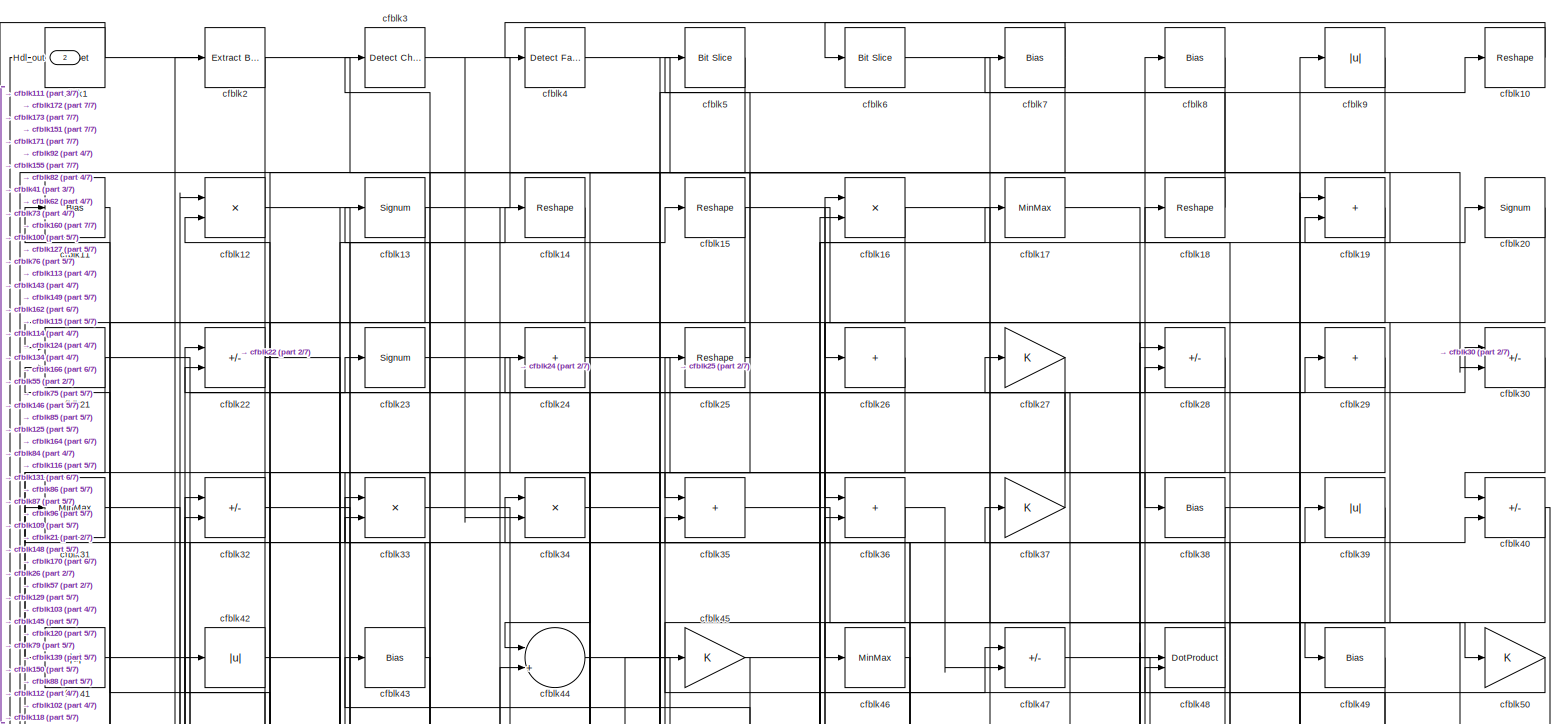
[diagram: root canvas - part 1/7, full width, top band]
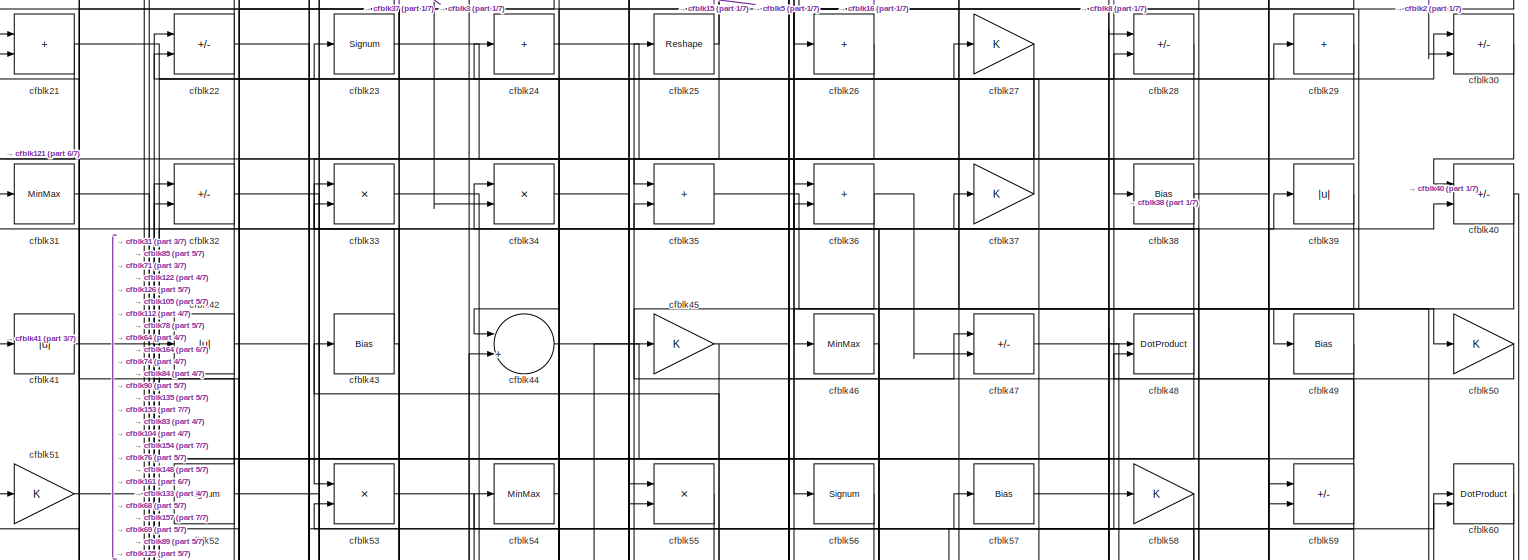
[diagram: root canvas - part 2/7, full width, top band]
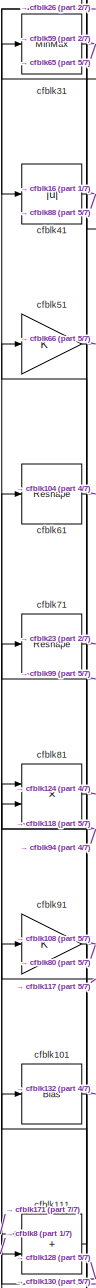
[diagram: root canvas - part 3/7, middle left region]
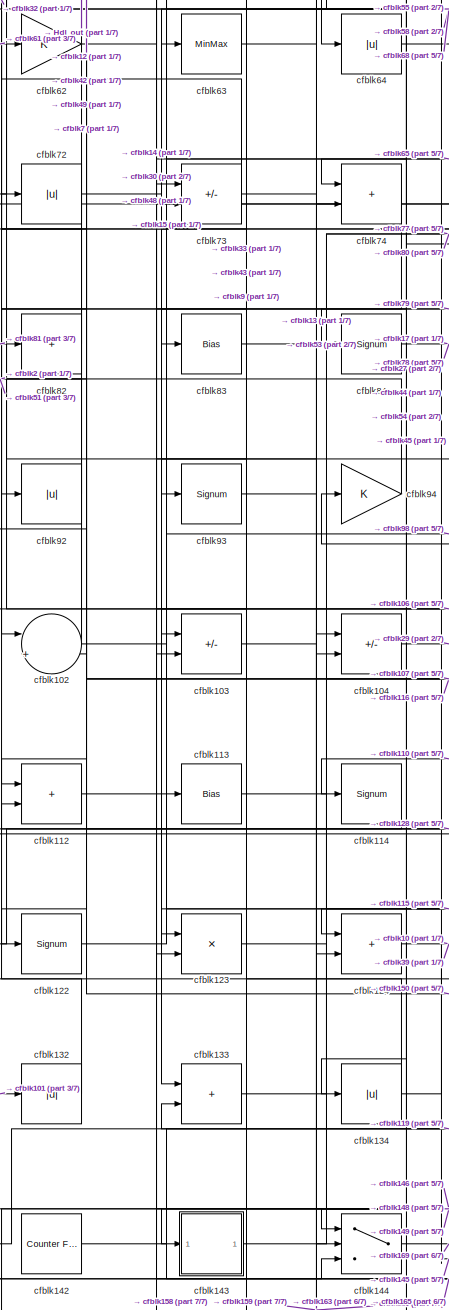
[diagram: root canvas - part 4/7, middle left region]
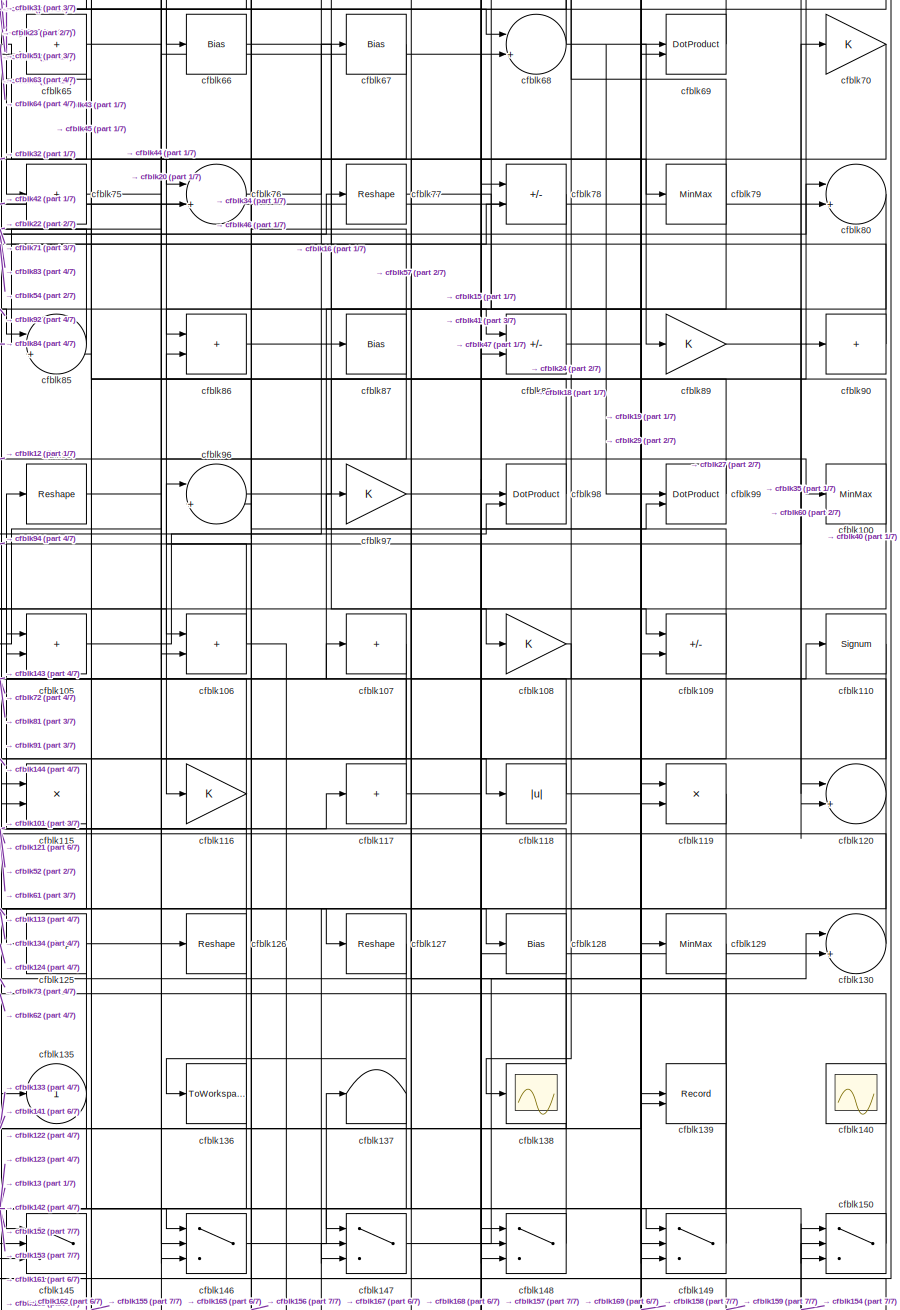
[diagram: root canvas - part 5/7, middle right region]
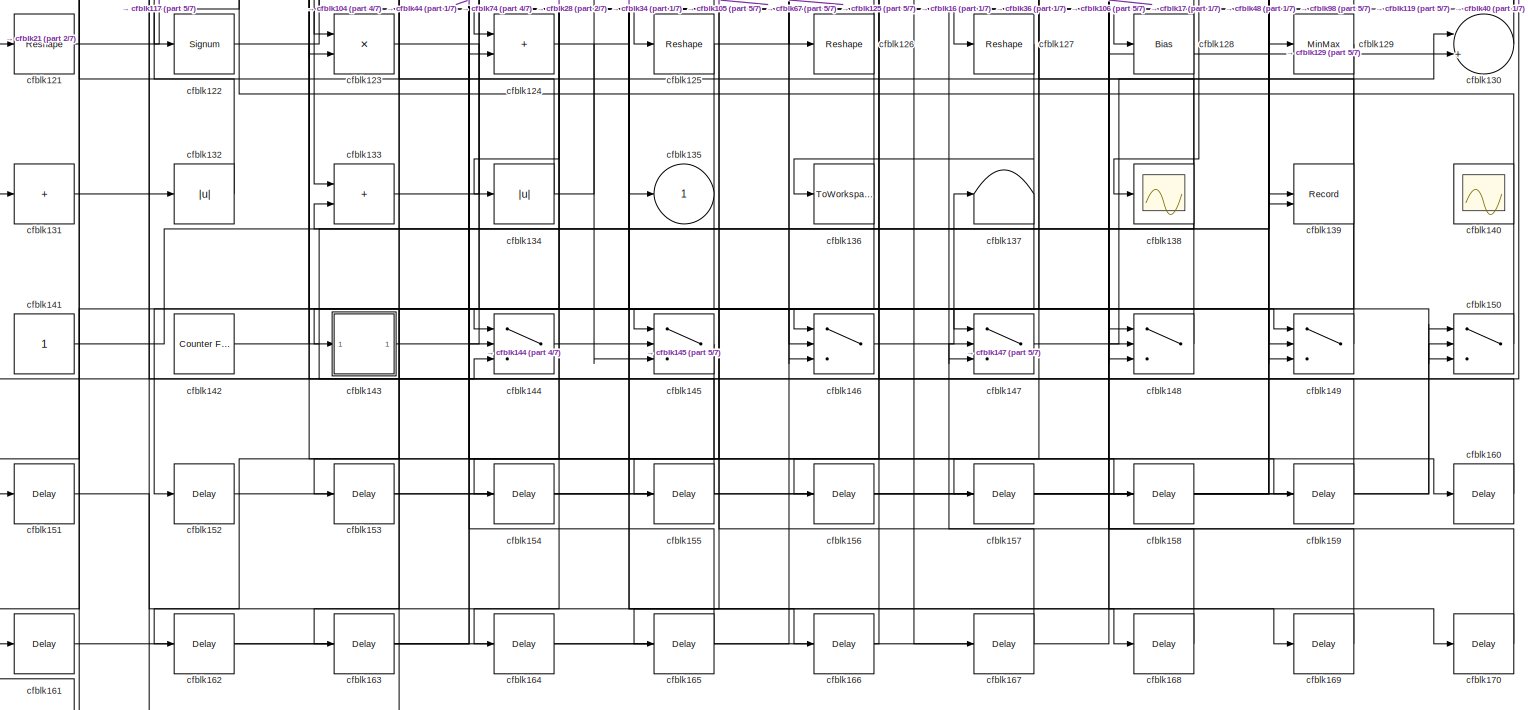
[diagram: root canvas - part 6/7, full width, bottom band]
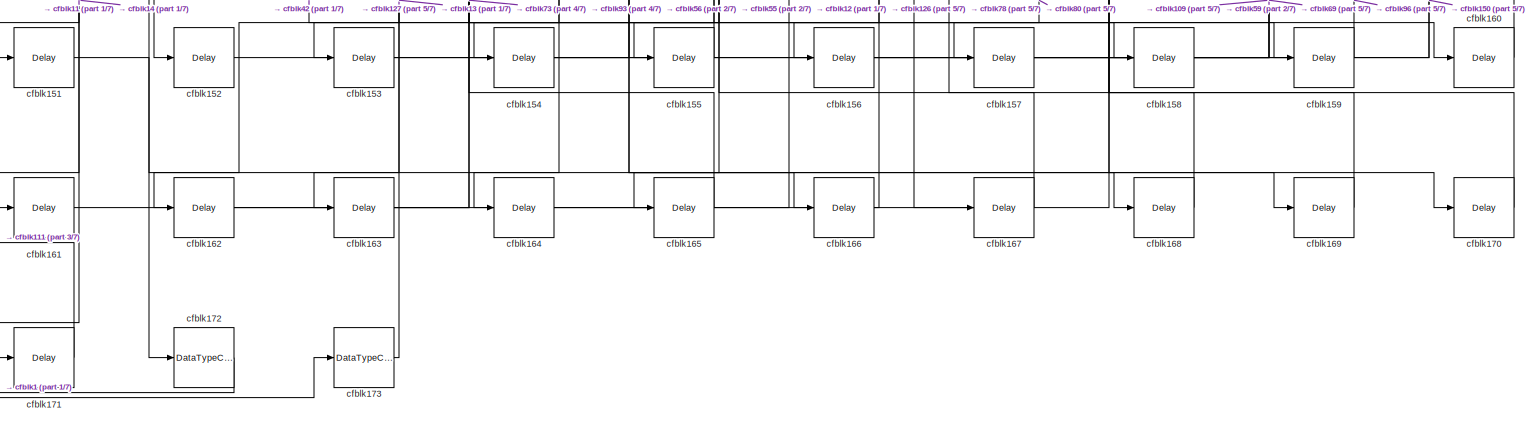
[diagram: root canvas - part 7/7, full width, bottom band]
MODEL slx_3c6c2945e381
KIND model
CONFIG AbsTol = auto
CONFIG EnableMultiTasking = off
CONFIG FixedStep = auto
CONFIG MaxStep = auto
CONFIG MinStep = auto
CONFIG RelTol = 1e-3
CONFIG SampleTimeConstraint = Unconstrained
CONFIG SolverName = VariableStepAuto
CONFIG StartTime = 0.0
CONFIG StopTime = 10.0
BLOCK [Outport] Hdl_out
  OutDataTypeStr = uint8
  Port = 2
BLOCK [Reference] cfblk1  REF=simulink/Logic and Bit
Operations/Bit Set
  LibrarySourceBlock = hdlsllib/Logic and Bit\nOperations/Bit Set
  SourceBlock = simulink/Logic and Bit\nOperations/Bit Set
  SourceType = Bit Set
BLOCK [Reshape] cfblk10
BLOCK [MinMax] cfblk100
  OutDataTypeStr = uint8
BLOCK [Bias] cfblk101
  Bias = 0.0
  SaturateOnIntegerOverflow = off
BLOCK [Sum] cfblk102
  Inputs = |++
  OutDataTypeStr = uint8
BLOCK [Sum] cfblk103
  IconShape = rectangular
  Inputs = +-
  OutDataTypeStr = uint8
BLOCK [Sum] cfblk104
  IconShape = rectangular
  Inputs = +-
  OutDataTypeStr = uint8
BLOCK [Sum] cfblk105
  IconShape = rectangular
  OutDataTypeStr = uint8
BLOCK [Sum] cfblk106
  IconShape = rectangular
  OutDataTypeStr = uint8
BLOCK [Sum] cfblk107
  IconShape = rectangular
  Inputs = +
  OutDataTypeStr = uint8
BLOCK [Gain] cfblk108
  OutDataTypeStr = uint8
BLOCK [Sum] cfblk109
  IconShape = rectangular
  Inputs = +-
  OutDataTypeStr = uint8
BLOCK [Bias] cfblk11
  Bias = 0.0
  SaturateOnIntegerOverflow = off
BLOCK [Signum] cfblk110
BLOCK [Sum] cfblk111
  IconShape = rectangular
  OutDataTypeStr = uint8
BLOCK [Sum] cfblk112
  IconShape = rectangular
  OutDataTypeStr = uint8
BLOCK [Bias] cfblk113
  Bias = 0.0
  SaturateOnIntegerOverflow = off
BLOCK [Signum] cfblk114
BLOCK [Product] cfblk115
  Inputs = */
  OutDataTypeStr = uint8
  RndMeth = Zero
  SaturateOnIntegerOverflow = on
BLOCK [Gain] cfblk116
  OutDataTypeStr = uint8
BLOCK [Sum] cfblk117
  IconShape = rectangular
  Inputs = +
  OutDataTypeStr = uint8
BLOCK [Abs] cfblk118
  OutDataTypeStr = uint8
  SaturateOnIntegerOverflow = off
BLOCK [Product] cfblk119
  Inputs = */
  OutDataTypeStr = uint8
  RndMeth = Zero
  SaturateOnIntegerOverflow = on
BLOCK [Product] cfblk12
  Inputs = */
  OutDataTypeStr = uint8
  RndMeth = Zero
  SaturateOnIntegerOverflow = on
BLOCK [Sum] cfblk120
  Inputs = |++
  OutDataTypeStr = uint8
BLOCK [Reshape] cfblk121
BLOCK [Signum] cfblk122
BLOCK [Product] cfblk123
  Inputs = */
  OutDataTypeStr = uint8
  RndMeth = Zero
  SaturateOnIntegerOverflow = on
BLOCK [Sum] cfblk124
  IconShape = rectangular
  OutDataTypeStr = uint8
BLOCK [Reshape] cfblk125
BLOCK [Reshape] cfblk126
BLOCK [Reshape] cfblk127
BLOCK [Bias] cfblk128
  Bias = 0.0
  SaturateOnIntegerOverflow = off
BLOCK [MinMax] cfblk129
  OutDataTypeStr = uint8
BLOCK [Signum] cfblk13
BLOCK [Sum] cfblk130
  Inputs = |++
  OutDataTypeStr = uint8
BLOCK [Sum] cfblk131
  IconShape = rectangular
  Inputs = +
  OutDataTypeStr = uint8
BLOCK [Abs] cfblk132
  OutDataTypeStr = uint8
  SaturateOnIntegerOverflow = off
BLOCK [Sum] cfblk133
  IconShape = rectangular
  OutDataTypeStr = uint8
BLOCK [Abs] cfblk134
  OutDataTypeStr = uint8
  SaturateOnIntegerOverflow = off
BLOCK [Outport] cfblk135
  OutDataTypeStr = uint8
  VectorParamsAs1DForOutWhenUnconnected = off
BLOCK [ToWorkspace] cfblk136
  MaxDataPoints = inf
  SampleTime = -1
  SaveFormat = Timeseries
  VariableName = simout
BLOCK [Terminator] cfblk137
BLOCK [Scope] cfblk138
  Floating = off
  NumInputPorts = 1
  ScopeSpecificationString = Simulink.scopes.TimeScopeBlockCfg('CurrentConfiguration', extmgr.ConfigurationSet(extmgr.Configuration('Core','General UI',true),extmgr.Configuration('Core','Source UI',true),extmgr.Configuration('Sources','WiredSimulink',true,'DataLoggingVariableName','ScopeData2','DataLoggingSaveFormat','Array','DataLoggingLimitDataPoints',true,'DataLoggingDecimation','1'),extmgr.Configuration('Visuals','Time Do...<+868ch>
BLOCK [Record] cfblk139
  CompatibilityTag = XY
  FileSettingsInternal = {"entries":[{"content":{"excelSettings":{"content":{},"type":"Streamout.ExcelSettings"}},"type":"Streamout.FileSettingStorage","uuid":""}],"packageUris":["http:\/\/schema.mathworks.com\/mf0\/streamout_blocks\/R2020a"],"version":"1.0"}
  Layout = [1 1]
  SignalsInternal = {"entries":[{"content":{"signals":[{"content":{"blockPath":[],"dimensions":[1],"domain":"","lineColor":"#a2142f","plots":[1],"port":1,"signalID":33722,"signalName":"cfblk4"},"type":"RecordBlkView.Signal","uuid":""},{"content":{"blockPath":[],"dimensions":[1],"domain":"","lineColor":"#139fff","plots":[1],"port":2,"signalID":33725,"signalName":"cfblk109"},"type":"RecordBlkView.Signal","uuid":""}]},"...<+142ch>
  VisualizationBindings = {"xyplotplugin":{"info":[{"series":[{"bindingParametersList":[{"parameter":"X-Axis","signalID":33722,"signalName":"cfblk4"},{"parameter":"Y-Axis","signalID":33725,"signalName":"cfblk109"}],"seriesID":50482}],"subplotID":1}]}}
  st = -1
BLOCK [Reshape] cfblk14
BLOCK [Scope] cfblk140
  Floating = on
  NumInputPorts = 1
  ScopeSpecificationString = Simulink.scopes.TimeScopeBlockCfg('CurrentConfiguration', extmgr.ConfigurationSet(extmgr.Configuration('Core','General UI',true,'FigureColor',[0.156862745098039 0.156862745098039 0.156862745098039]),extmgr.Configuration('Core','Source UI',true),extmgr.Configuration('Sources','WiredSimulink',true,'DataLoggingVariableName','ScopeData1','DataLoggingSaveFormat','StructureWithTime','DataLoggingLimitDat...<+2713ch>
BLOCK [Constant] cfblk141
  OutDataTypeStr = uint8
  SampleTime = -1
BLOCK [Reference] cfblk142  REF=hdlsllib/Sources/Counter
Free-Running
  SourceBlock = hdlsllib/Sources/Counter\nFree-Running
  SourceType = Counter Free-Running
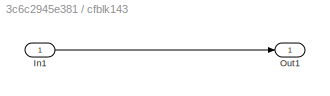
BLOCK [SubSystem] cfblk143
  LibrarySourceBlock = hdlsllib/Ports &\nSubsystems/Subsystem
BLOCK [Inport] cfblk143/In1
BLOCK [Outport] cfblk143/Out1
BLOCK [Switch] cfblk144
  InputSameDT = off
  OutDataTypeStr = uint8
  SaturateOnIntegerOverflow = off
BLOCK [Switch] cfblk145
  InputSameDT = off
  OutDataTypeStr = uint8
  SaturateOnIntegerOverflow = off
BLOCK [Switch] cfblk146
  InputSameDT = off
  OutDataTypeStr = uint8
  SaturateOnIntegerOverflow = off
BLOCK [Switch] cfblk147
  InputSameDT = off
  OutDataTypeStr = uint8
  SaturateOnIntegerOverflow = off
BLOCK [Switch] cfblk148
  InputSameDT = off
  OutDataTypeStr = uint8
  SaturateOnIntegerOverflow = off
BLOCK [Switch] cfblk149
  InputSameDT = off
  OutDataTypeStr = uint8
  SaturateOnIntegerOverflow = off
BLOCK [Reshape] cfblk15
BLOCK [Switch] cfblk150
  InputSameDT = off
  OutDataTypeStr = uint8
  SaturateOnIntegerOverflow = off
BLOCK [Delay] cfblk151
  InputPortMap = u0
  SampleTime = 1
BLOCK [Delay] cfblk152
  InputPortMap = u0
  SampleTime = 1
BLOCK [Delay] cfblk153
  InputPortMap = u0
  SampleTime = 1
BLOCK [Delay] cfblk154
  InputPortMap = u0
  SampleTime = 1
BLOCK [Delay] cfblk155
  InputPortMap = u0
  SampleTime = 1
BLOCK [Delay] cfblk156
  InputPortMap = u0
  SampleTime = 1
BLOCK [Delay] cfblk157
  InputPortMap = u0
  SampleTime = 1
BLOCK [Delay] cfblk158
  InputPortMap = u0
  SampleTime = 1
BLOCK [Delay] cfblk159
  InputPortMap = u0
  SampleTime = 1
BLOCK [Product] cfblk16
  Inputs = */
  OutDataTypeStr = uint8
  RndMeth = Zero
  SaturateOnIntegerOverflow = on
BLOCK [Delay] cfblk160
  InputPortMap = u0
  SampleTime = 1
BLOCK [Delay] cfblk161
  InputPortMap = u0
  SampleTime = 1
BLOCK [Delay] cfblk162
  InputPortMap = u0
  SampleTime = 1
BLOCK [Delay] cfblk163
  InputPortMap = u0
  SampleTime = 1
BLOCK [Delay] cfblk164
  InputPortMap = u0
  SampleTime = 1
BLOCK [Delay] cfblk165
  InputPortMap = u0
  SampleTime = 1
BLOCK [Delay] cfblk166
  InputPortMap = u0
  SampleTime = 1
BLOCK [Delay] cfblk167
  InputPortMap = u0
  SampleTime = 1
BLOCK [Delay] cfblk168
  InputPortMap = u0
  SampleTime = 1
BLOCK [Delay] cfblk169
  InputPortMap = u0
  SampleTime = 1
BLOCK [MinMax] cfblk17
  OutDataTypeStr = uint8
BLOCK [Delay] cfblk170
  InputPortMap = u0
  SampleTime = 1
BLOCK [Delay] cfblk171
  InputPortMap = u0
  SampleTime = 1
BLOCK [DataTypeConversion] cfblk172
  OutDataTypeStr = uint8
  RndMeth = Floor
  SaturateOnIntegerOverflow = off
BLOCK [DataTypeConversion] cfblk173
  OutDataTypeStr = uint8
  RndMeth = Floor
  SaturateOnIntegerOverflow = off
BLOCK [Reshape] cfblk18
BLOCK [Sum] cfblk19
  IconShape = rectangular
  OutDataTypeStr = uint8
BLOCK [Reference] cfblk2  REF=simulink/Logic and Bit
Operations/Extract Bits
  LibrarySourceBlock = hdlsllib/Logic and Bit\nOperations/Extract Bits
  SourceBlock = simulink/Logic and Bit\nOperations/Extract Bits
  SourceType = Extract Bits
BLOCK [Signum] cfblk20
BLOCK [Sum] cfblk21
  IconShape = rectangular
  OutDataTypeStr = uint8
BLOCK [Sum] cfblk22
  IconShape = rectangular
  Inputs = +-
  OutDataTypeStr = uint8
BLOCK [Signum] cfblk23
BLOCK [Sum] cfblk24
  IconShape = rectangular
  Inputs = +
  OutDataTypeStr = uint8
BLOCK [Reshape] cfblk25
BLOCK [Sum] cfblk26
  IconShape = rectangular
  Inputs = +
  OutDataTypeStr = uint8
BLOCK [Gain] cfblk27
  OutDataTypeStr = uint8
BLOCK [Sum] cfblk28
  IconShape = rectangular
  Inputs = +-
  OutDataTypeStr = uint8
BLOCK [Sum] cfblk29
  IconShape = rectangular
  Inputs = +
  OutDataTypeStr = uint8
BLOCK [Reference] cfblk3  REF=simulink/Logic and Bit
Operations/Detect
Change
  LibrarySourceBlock = hdlsllib/Logic and Bit\nOperations/Detect\nChange
  SourceBlock = simulink/Logic and Bit\nOperations/Detect\nChange
  SourceType = Detect Change
BLOCK [Sum] cfblk30
  IconShape = rectangular
  Inputs = +-
  OutDataTypeStr = uint8
BLOCK [MinMax] cfblk31
  OutDataTypeStr = uint8
BLOCK [Sum] cfblk32
  IconShape = rectangular
  Inputs = +-
  OutDataTypeStr = uint8
BLOCK [Product] cfblk33
  Inputs = */
  OutDataTypeStr = uint8
  RndMeth = Zero
  SaturateOnIntegerOverflow = on
BLOCK [Product] cfblk34
  Inputs = */
  OutDataTypeStr = uint8
  RndMeth = Zero
  SaturateOnIntegerOverflow = on
BLOCK [Sum] cfblk35
  IconShape = rectangular
  OutDataTypeStr = uint8
BLOCK [Sum] cfblk36
  IconShape = rectangular
  OutDataTypeStr = uint8
BLOCK [Gain] cfblk37
  OutDataTypeStr = uint8
BLOCK [Bias] cfblk38
  Bias = 0.0
  SaturateOnIntegerOverflow = off
BLOCK [Abs] cfblk39
  OutDataTypeStr = uint8
  SaturateOnIntegerOverflow = off
BLOCK [Reference] cfblk4  REF=hdlsllib/Logic and Bit
Operations/Detect Fall
Negative
  SourceBlock = hdlsllib/Logic and Bit\nOperations/Detect Fall\nNegative
  SourceType = Detect Fall Negative
BLOCK [Sum] cfblk40
  IconShape = rectangular
  Inputs = +-
  OutDataTypeStr = uint8
BLOCK [Abs] cfblk41
  OutDataTypeStr = uint8
  SaturateOnIntegerOverflow = off
BLOCK [Abs] cfblk42
  OutDataTypeStr = uint8
  SaturateOnIntegerOverflow = off
BLOCK [Bias] cfblk43
  Bias = 0.0
  SaturateOnIntegerOverflow = off
BLOCK [Sum] cfblk44
  Inputs = |++
  OutDataTypeStr = uint8
BLOCK [Gain] cfblk45
  OutDataTypeStr = uint8
BLOCK [MinMax] cfblk46
  OutDataTypeStr = uint8
BLOCK [Sum] cfblk47
  IconShape = rectangular
  Inputs = +-
  OutDataTypeStr = uint8
BLOCK [DotProduct] cfblk48
  OutDataTypeStr = uint8
BLOCK [Bias] cfblk49
  Bias = 0.0
  SaturateOnIntegerOverflow = off
BLOCK [Reference] cfblk5  REF=hdlsllib/Logic and Bit
Operations/Bit Slice
  SourceBlock = hdlsllib/Logic and Bit\nOperations/Bit Slice
  SourceType = Bit Slice
BLOCK [Gain] cfblk50
  OutDataTypeStr = uint8
BLOCK [Gain] cfblk51
  OutDataTypeStr = uint8
BLOCK [Signum] cfblk52
BLOCK [Product] cfblk53
  Inputs = */
  OutDataTypeStr = uint8
  RndMeth = Zero
  SaturateOnIntegerOverflow = on
BLOCK [MinMax] cfblk54
  OutDataTypeStr = uint8
BLOCK [Product] cfblk55
  Inputs = */
  OutDataTypeStr = uint8
  RndMeth = Zero
  SaturateOnIntegerOverflow = on
BLOCK [Signum] cfblk56
BLOCK [Bias] cfblk57
  Bias = 0.0
  SaturateOnIntegerOverflow = off
BLOCK [Gain] cfblk58
  OutDataTypeStr = uint8
BLOCK [Sum] cfblk59
  IconShape = rectangular
  Inputs = +-
  OutDataTypeStr = uint8
BLOCK [Reference] cfblk6  REF=hdlsllib/Logic and Bit
Operations/Bit Slice
  SourceBlock = hdlsllib/Logic and Bit\nOperations/Bit Slice
  SourceType = Bit Slice
BLOCK [DotProduct] cfblk60
  OutDataTypeStr = uint8
BLOCK [Reshape] cfblk61
BLOCK [Gain] cfblk62
  OutDataTypeStr = uint8
BLOCK [MinMax] cfblk63
  OutDataTypeStr = uint8
BLOCK [Abs] cfblk64
  OutDataTypeStr = uint8
  SaturateOnIntegerOverflow = off
BLOCK [Sum] cfblk65
  IconShape = rectangular
  OutDataTypeStr = uint8
BLOCK [Bias] cfblk66
  Bias = 0.0
  SaturateOnIntegerOverflow = off
BLOCK [Bias] cfblk67
  Bias = 0.0
  SaturateOnIntegerOverflow = off
BLOCK [Sum] cfblk68
  Inputs = |++
  OutDataTypeStr = uint8
BLOCK [DotProduct] cfblk69
  OutDataTypeStr = uint8
BLOCK [Bias] cfblk7
  Bias = 0.0
  SaturateOnIntegerOverflow = off
BLOCK [Gain] cfblk70
  OutDataTypeStr = uint8
BLOCK [Reshape] cfblk71
BLOCK [Abs] cfblk72
  OutDataTypeStr = uint8
  SaturateOnIntegerOverflow = off
BLOCK [Sum] cfblk73
  IconShape = rectangular
  Inputs = +-
  OutDataTypeStr = uint8
BLOCK [Sum] cfblk74
  IconShape = rectangular
  OutDataTypeStr = uint8
BLOCK [Sum] cfblk75
  IconShape = rectangular
  Inputs = +
  OutDataTypeStr = uint8
BLOCK [Sum] cfblk76
  Inputs = |++
  OutDataTypeStr = uint8
BLOCK [Reshape] cfblk77
BLOCK [Sum] cfblk78
  IconShape = rectangular
  Inputs = +-
  OutDataTypeStr = uint8
BLOCK [MinMax] cfblk79
  OutDataTypeStr = uint8
BLOCK [Bias] cfblk8
  Bias = 0.0
  SaturateOnIntegerOverflow = off
BLOCK [Sum] cfblk80
  Inputs = |++
  OutDataTypeStr = uint8
BLOCK [Product] cfblk81
  Inputs = */
  OutDataTypeStr = uint8
  RndMeth = Zero
  SaturateOnIntegerOverflow = on
BLOCK [Sum] cfblk82
  IconShape = rectangular
  Inputs = +
  OutDataTypeStr = uint8
BLOCK [Bias] cfblk83
  Bias = 0.0
  SaturateOnIntegerOverflow = off
BLOCK [Signum] cfblk84
BLOCK [Sum] cfblk85
  Inputs = |++
  OutDataTypeStr = uint8
BLOCK [Sum] cfblk86
  IconShape = rectangular
  OutDataTypeStr = uint8
BLOCK [Bias] cfblk87
  Bias = 0.0
  SaturateOnIntegerOverflow = off
BLOCK [Sum] cfblk88
  IconShape = rectangular
  Inputs = +-
  OutDataTypeStr = uint8
BLOCK [Gain] cfblk89
  OutDataTypeStr = uint8
BLOCK [Abs] cfblk9
  OutDataTypeStr = uint8
  SaturateOnIntegerOverflow = off
BLOCK [Sum] cfblk90
  IconShape = rectangular
  Inputs = +
  OutDataTypeStr = uint8
BLOCK [Gain] cfblk91
  OutDataTypeStr = uint8
BLOCK [Abs] cfblk92
  OutDataTypeStr = uint8
  SaturateOnIntegerOverflow = off
BLOCK [Signum] cfblk93
BLOCK [Gain] cfblk94
  OutDataTypeStr = uint8
BLOCK [Reshape] cfblk95
BLOCK [Sum] cfblk96
  Inputs = |++
  OutDataTypeStr = uint8
BLOCK [Gain] cfblk97
  OutDataTypeStr = uint8
BLOCK [DotProduct] cfblk98
  OutDataTypeStr = uint8
BLOCK [DotProduct] cfblk99
  OutDataTypeStr = uint8
NET cfblk100:1 -> cfblk147:1, cfblk43:1
LINE cfblk101:1 -> cfblk132:1
NET cfblk102:1 -> Hdl_out:1, cfblk15:1
LINE cfblk103:1 -> cfblk144:2
LINE cfblk104:1 -> cfblk29:1
NET cfblk105:1 -> cfblk67:1, cfblk70:1
NET cfblk106:1 -> cfblk167:1, cfblk94:1
LINE cfblk107:1 -> cfblk115:2
LINE cfblk108:1 -> cfblk138:1
NET cfblk109:1 -> cfblk139:2, cfblk148:3, cfblk86:2
LINE cfblk10:1 -> cfblk6:1
LINE cfblk110:1 -> cfblk144:1
LINE cfblk111:1 -> cfblk31:1
NET cfblk112:1 -> cfblk30:1, cfblk58:1
NET cfblk113:1 -> cfblk128:1, cfblk33:2
LINE cfblk114:1 -> cfblk112:2
LINE cfblk115:1 -> cfblk123:1
NET cfblk116:1 -> cfblk72:1, cfblk95:1
NET cfblk117:1 -> cfblk91:1, cfblk99:2
NET cfblk118:1 -> cfblk19:1, cfblk81:2
LINE cfblk119:1 -> cfblk134:1
LINE cfblk11:1 -> cfblk171:1
NET cfblk120:1 -> cfblk147:3, cfblk18:1, cfblk97:1
LINE cfblk121:1 -> cfblk117:1
NET cfblk122:1 -> cfblk146:2, cfblk98:2
LINE cfblk123:1 -> cfblk149:1
NET cfblk124:1 -> cfblk10:1, cfblk145:3, cfblk39:1
NET cfblk125:1 -> cfblk161:1, cfblk47:1
NET cfblk126:1 -> cfblk155:1, cfblk52:1
NET cfblk127:1 -> cfblk136:1, cfblk152:1, cfblk153:1
NET cfblk128:1 -> cfblk101:1, cfblk133:2
NET cfblk129:1 -> cfblk145:1, cfblk163:1
NET cfblk12:1 -> cfblk100:1, cfblk127:1
LINE cfblk130:1 -> cfblk61:1
LINE cfblk131:1 -> cfblk168:1
LINE cfblk132:1 -> cfblk81:1
LINE cfblk133:1 -> cfblk80:1
NET cfblk134:1 -> cfblk32:1, cfblk45:1
NET cfblk13:1 -> cfblk102:2, cfblk149:3, cfblk19:2
LINE cfblk141:1 -> cfblk119:1
NET cfblk142:1 -> cfblk113:1, cfblk119:2, cfblk144:3, cfblk148:2
LINE cfblk143/In1:1 -> cfblk143/Out1:1
LINE cfblk143:1 -> cfblk107:1
LINE cfblk144:1 -> cfblk169:1
LINE cfblk145:1 -> cfblk162:1
LINE cfblk146:1 -> cfblk137:1
LINE cfblk147:1 -> cfblk130:1
LINE cfblk148:1 -> cfblk57:1
LINE cfblk149:1 -> cfblk73:2
LINE cfblk14:1 -> cfblk151:1
LINE cfblk150:1 -> cfblk62:1
LINE cfblk151:1 -> cfblk172:1
LINE cfblk152:1 -> cfblk150:2
LINE cfblk153:1 -> cfblk55:2
LINE cfblk154:1 -> cfblk150:1
LINE cfblk155:1 -> cfblk12:1
LINE cfblk156:1 -> cfblk109:2
LINE cfblk157:1 -> cfblk59:1
LINE cfblk158:1 -> cfblk69:1
LINE cfblk159:1 -> cfblk96:1
NET cfblk15:1 -> cfblk114:1, cfblk148:1, cfblk26:1
LINE cfblk160:1 -> cfblk73:1
LINE cfblk161:1 -> cfblk28:1
LINE cfblk162:1 -> cfblk44:2
LINE cfblk163:1 -> cfblk74:2
LINE cfblk164:1 -> cfblk16:2
LINE cfblk165:1 -> cfblk104:1
LINE cfblk166:1 -> cfblk36:2
LINE cfblk167:1 -> cfblk105:2
LINE cfblk168:1 -> cfblk147:2
LINE cfblk169:1 -> cfblk98:1
NET cfblk16:1 -> cfblk109:1, cfblk21:1
LINE cfblk170:1 -> cfblk48:1
LINE cfblk171:1 -> cfblk111:1
LINE cfblk172:1 -> cfblk1:1
LINE cfblk173:1 -> cfblk13:1
LINE cfblk17:1 -> cfblk170:1
LINE cfblk18:1 -> cfblk7:1
LINE cfblk19:1 -> cfblk36:1
LINE cfblk1:1 -> cfblk173:1
NET cfblk20:1 -> cfblk116:1, cfblk49:1
NET cfblk21:1 -> cfblk121:1, cfblk28:2
LINE cfblk22:1 -> cfblk105:1
LINE cfblk23:1 -> cfblk135:1
LINE cfblk24:1 -> cfblk38:1
LINE cfblk25:1 -> cfblk5:1
LINE cfblk26:1 -> cfblk41:1
NET cfblk27:1 -> cfblk122:1, cfblk84:1
NET cfblk28:1 -> cfblk164:1, cfblk53:1
NET cfblk29:1 -> cfblk56:1, cfblk69:2
LINE cfblk2:1 -> cfblk30:2
LINE cfblk30:1 -> cfblk40:1
NET cfblk31:1 -> cfblk59:2, cfblk65:2
LINE cfblk32:1 -> cfblk76:1
LINE cfblk33:1 -> cfblk115:1
LINE cfblk34:1 -> cfblk166:1
LINE cfblk35:1 -> cfblk120:2
NET cfblk36:1 -> cfblk46:1, cfblk47:2
NET cfblk37:1 -> cfblk22:2, cfblk3:1
NET cfblk38:1 -> cfblk35:2, cfblk9:1
LINE cfblk39:1 -> cfblk75:1
NET cfblk3:1 -> cfblk34:2, cfblk55:1
NET cfblk40:1 -> cfblk131:1, cfblk86:1
NET cfblk41:1 -> cfblk16:1, cfblk88:2
NET cfblk42:1 -> cfblk160:1, cfblk76:2
NET cfblk43:1 -> cfblk103:1, cfblk11:1
NET cfblk44:1 -> cfblk124:1, cfblk146:3
NET cfblk45:1 -> cfblk118:1, cfblk85:2
LINE cfblk46:1 -> cfblk96:2
LINE cfblk47:1 -> cfblk129:1
NET cfblk48:1 -> cfblk103:2, cfblk145:2, cfblk37:1
LINE cfblk49:1 -> cfblk112:1
NET cfblk4:1 -> cfblk139:1, cfblk150:3
LINE cfblk50:1 -> cfblk48:2
LINE cfblk51:1 -> cfblk66:1
NET cfblk52:1 -> cfblk21:2, cfblk78:1, cfblk85:1
LINE cfblk53:1 -> cfblk64:1
LINE cfblk54:1 -> cfblk74:1
LINE cfblk55:1 -> cfblk83:1
LINE cfblk56:1 -> cfblk154:1
LINE cfblk57:1 -> cfblk8:1
LINE cfblk58:1 -> cfblk133:1
NET cfblk59:1 -> cfblk25:1, cfblk53:2
LINE cfblk5:1 -> cfblk44:1
LINE cfblk60:1 -> cfblk125:1
LINE cfblk61:1 -> cfblk104:2
NET cfblk62:1 -> cfblk12:2, cfblk14:1
LINE cfblk63:1 -> cfblk68:1
NET cfblk64:1 -> cfblk146:1, cfblk149:2
NET cfblk65:1 -> cfblk123:2, cfblk126:1
LINE cfblk66:1 -> cfblk88:1
LINE cfblk67:1 -> cfblk165:1
NET cfblk68:1 -> cfblk24:1, cfblk89:1, cfblk99:1
LINE cfblk69:1 -> cfblk27:1
LINE cfblk6:1 -> cfblk50:1
LINE cfblk70:1 -> cfblk87:1
LINE cfblk71:1 -> cfblk23:1
LINE cfblk72:1 -> cfblk63:1
NET cfblk73:1 -> cfblk158:1, cfblk42:1, cfblk93:1
LINE cfblk74:1 -> cfblk102:1
NET cfblk75:1 -> cfblk20:1, cfblk79:1
LINE cfblk76:1 -> cfblk60:2
LINE cfblk77:1 -> cfblk120:1
LINE cfblk78:1 -> cfblk156:1
NET cfblk79:1 -> cfblk33:1, cfblk92:1
NET cfblk7:1 -> cfblk4:1, cfblk82:1
LINE cfblk80:1 -> cfblk157:1
LINE cfblk81:1 -> cfblk124:2
LINE cfblk82:1 -> cfblk32:2
NET cfblk83:1 -> cfblk106:1, cfblk77:1
NET cfblk84:1 -> cfblk17:1, cfblk78:2
LINE cfblk85:1 -> cfblk22:1
LINE cfblk86:1 -> cfblk110:1
NET cfblk87:1 -> cfblk106:2, cfblk34:1
LINE cfblk88:1 -> cfblk40:2
LINE cfblk89:1 -> cfblk60:1
LINE cfblk8:1 -> cfblk111:2
LINE cfblk90:1 -> cfblk54:1
NET cfblk91:1 -> cfblk108:1, cfblk80:2
LINE cfblk92:1 -> cfblk2:1
LINE cfblk93:1 -> cfblk159:1
LINE cfblk94:1 -> cfblk51:1
LINE cfblk95:1 -> cfblk68:2
LINE cfblk96:1 -> cfblk90:1
LINE cfblk97:1 -> cfblk130:2
LINE cfblk98:1 -> cfblk65:1
LINE cfblk99:1 -> cfblk71:1
NET cfblk9:1 -> cfblk143:1, cfblk35:1
note: NET lines group one-source signal fan-out (src -> all destinations, sorted); 1:1 wires keep LINE
